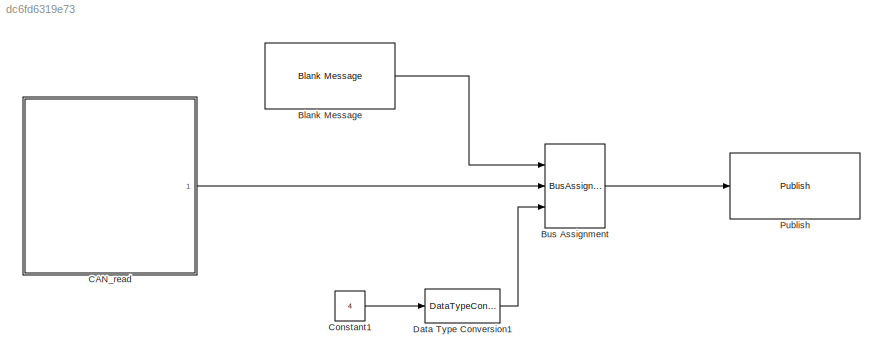
MODEL slx_dc6fd6319e73
KIND model
CONFIG AbsTol = auto
CONFIG EnableMultiTasking = off
CONFIG FixedStep = 0.001
CONFIG MaxStep = auto
CONFIG MinStep = auto
CONFIG RelTol = 1e-3
CONFIG SampleTimeConstraint = Unconstrained
CONFIG Solver = FixedStepAuto
CONFIG SolverName = FixedStepAuto
CONFIG StartTime = 0.0
CONFIG StopTime = inf
WORKSPACE source: mxarray member
WORKSPACE SL_ROS_VariableLengthArrays_MaxSizes: object (value not decoded)
BLOCK [Reference] Blank Message  REF=robotlib/Blank Message
  Ports = [0, 1]
  SourceBlock = robotlib/Blank Message
  SourceProductBaseCode = RO
  SourceProductName = Robotics System Toolbox
  SourceType = ROS Blank Message
BLOCK [BusAssignment] Bus Assignment
  AssignedSignals = Data,Data_SL_Info.CurrentLength
  Ports = [3, 1]
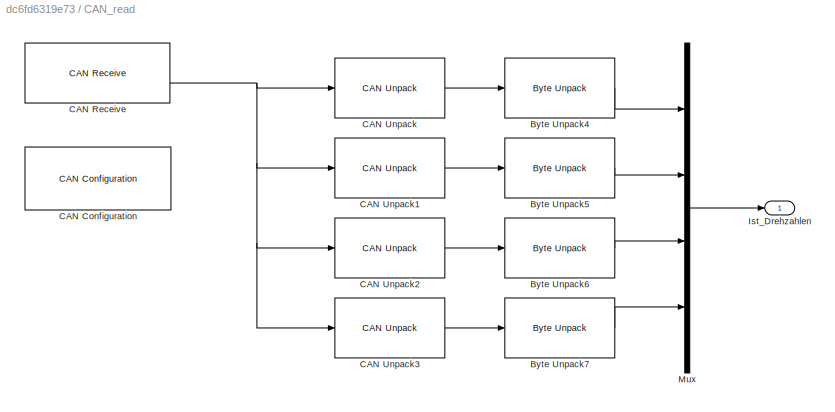
BLOCK [SubSystem] CAN_read
  Ports = [0, 1]
  RequestExecContextInheritance = off
BLOCK [Reference] CAN_read/Byte Unpack4  REF=etargetslib/Byte Unpack
  Ports = [1, 1]
  SourceBlock = etargetslib/Byte Unpack
  SourceProductBaseCode = ME
  SourceProductName = MATLAB Coder
  SourceType = Byte Unpack
BLOCK [Reference] CAN_read/Byte Unpack5  REF=etargetslib/Byte Unpack
  Ports = [1, 1]
  SourceBlock = etargetslib/Byte Unpack
  SourceProductBaseCode = ME
  SourceProductName = MATLAB Coder
  SourceType = Byte Unpack
BLOCK [Reference] CAN_read/Byte Unpack6  REF=etargetslib/Byte Unpack
  Ports = [1, 1]
  SourceBlock = etargetslib/Byte Unpack
  SourceProductBaseCode = ME
  SourceProductName = MATLAB Coder
  SourceType = Byte Unpack
BLOCK [Reference] CAN_read/Byte Unpack7  REF=etargetslib/Byte Unpack
  Ports = [1, 1]
  SourceBlock = etargetslib/Byte Unpack
  SourceProductBaseCode = ME
  SourceProductName = MATLAB Coder
  SourceType = Byte Unpack
BLOCK [Reference] CAN_read/CAN Configuration  REF=canlib/CAN Configuration
  Ports = []
  SourceBlock = canlib/CAN Configuration
  SourceProductBaseCode = VN
  SourceProductName = Vehicle Network Toolbox
  SourceType = CAN Configuration
BLOCK [Reference] CAN_read/CAN Receive  REF=canlib/CAN Receive
  Ports = [0, 2]
  SourceBlock = canlib/CAN Receive
  SourceProductBaseCode = VN
  SourceProductName = Vehicle Network Toolbox
  SourceType = CAN Receive
BLOCK [Reference] CAN_read/CAN Unpack  REF=canmsglib/CAN Unpack
  Ports = [1, 1]
  SourceBlock = canmsglib/CAN Unpack
  SourceProductBaseCode = VN
  SourceProductName = Vehicle Network Toolbox
  SourceType = CAN Unpack
BLOCK [Reference] CAN_read/CAN Unpack1  REF=canmsglib/CAN Unpack
  Ports = [1, 1]
  SourceBlock = canmsglib/CAN Unpack
  SourceProductBaseCode = VN
  SourceProductName = Vehicle Network Toolbox
  SourceType = CAN Unpack
BLOCK [Reference] CAN_read/CAN Unpack2  REF=canmsglib/CAN Unpack
  Ports = [1, 1]
  SourceBlock = canmsglib/CAN Unpack
  SourceProductBaseCode = VN
  SourceProductName = Vehicle Network Toolbox
  SourceType = CAN Unpack
BLOCK [Reference] CAN_read/CAN Unpack3  REF=canmsglib/CAN Unpack
  Ports = [1, 1]
  SourceBlock = canmsglib/CAN Unpack
  SourceProductBaseCode = VN
  SourceProductName = Vehicle Network Toolbox
  SourceType = CAN Unpack
BLOCK [Outport] CAN_read/Ist_Drehzahlen
  IconDisplay = Port number
  VectorParamsAs1DForOutWhenUnconnected = off
BLOCK [Mux] CAN_read/Mux
  DisplayOption = bar
  Ports = [4, 1]
BLOCK [Constant] Constant1
  Value = 4
BLOCK [DataTypeConversion] Data Type Conversion1
  OutDataTypeStr = uint32
  RndMeth = Floor
  SaturateOnIntegerOverflow = off
BLOCK [Reference] Publish  REF=robotlib/Publish
  Ports = [1]
  SourceBlock = robotlib/Publish
  SourceProductBaseCode = RO
  SourceProductName = Robotics System Toolbox
  SourceType = ROS Publish
LINE Blank Message:1 -> Bus Assignment:1
LINE Bus Assignment:1 -> Publish:1
LINE CAN_read/Byte Unpack4:1 -> CAN_read/Mux:1
LINE CAN_read/Byte Unpack5:1 -> CAN_read/Mux:2
LINE CAN_read/Byte Unpack6:1 -> CAN_read/Mux:3
LINE CAN_read/Byte Unpack7:1 -> CAN_read/Mux:4
NET CAN_read/CAN Receive:2 -> CAN_read/CAN Unpack1:1, CAN_read/CAN Unpack2:1, CAN_read/CAN Unpack3:1, CAN_read/CAN Unpack:1
LINE CAN_read/CAN Unpack1:1 -> CAN_read/Byte Unpack5:1
LINE CAN_read/CAN Unpack2:1 -> CAN_read/Byte Unpack6:1
LINE CAN_read/CAN Unpack3:1 -> CAN_read/Byte Unpack7:1
LINE CAN_read/CAN Unpack:1 -> CAN_read/Byte Unpack4:1
LINE CAN_read/Mux:1 -> CAN_read/Ist_Drehzahlen:1
LINE CAN_read:1 -> Bus Assignment:2
LINE Constant1:1 -> Data Type Conversion1:1
LINE Data Type Conversion1:1 -> Bus Assignment:3
note: NET lines group one-source signal fan-out (src -> all destinations, sorted); 1:1 wires keep LINE
